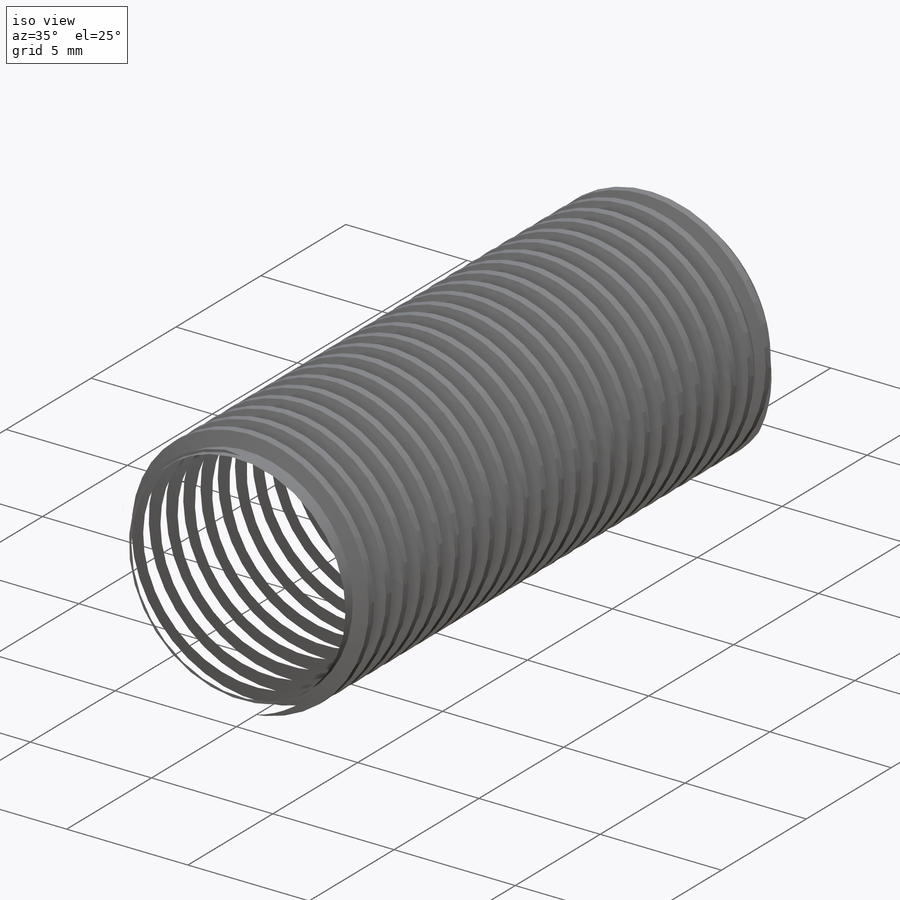
[diagram: iso view]
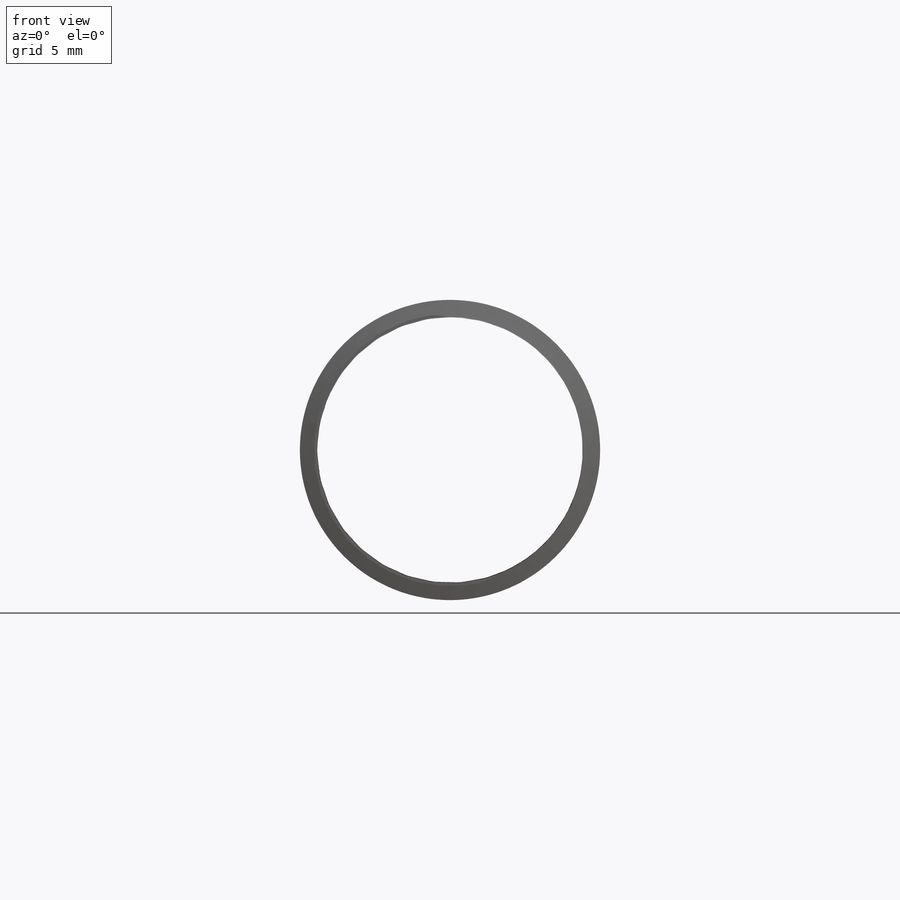
[diagram: front view]
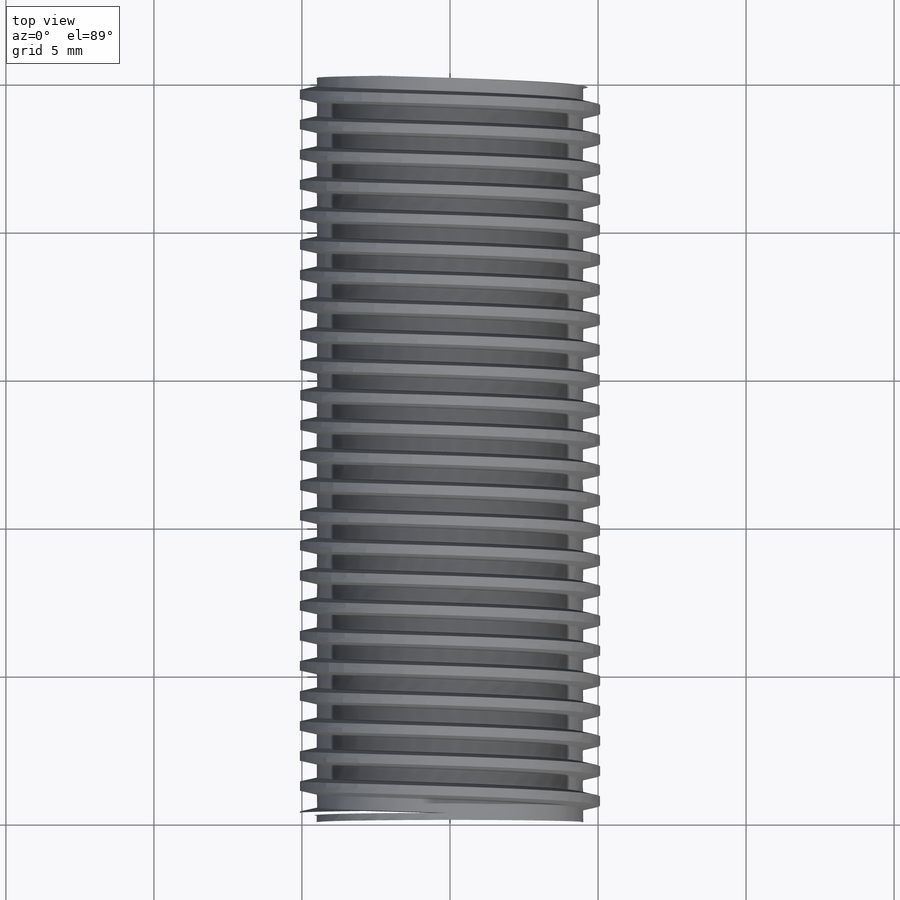
[diagram: top view]
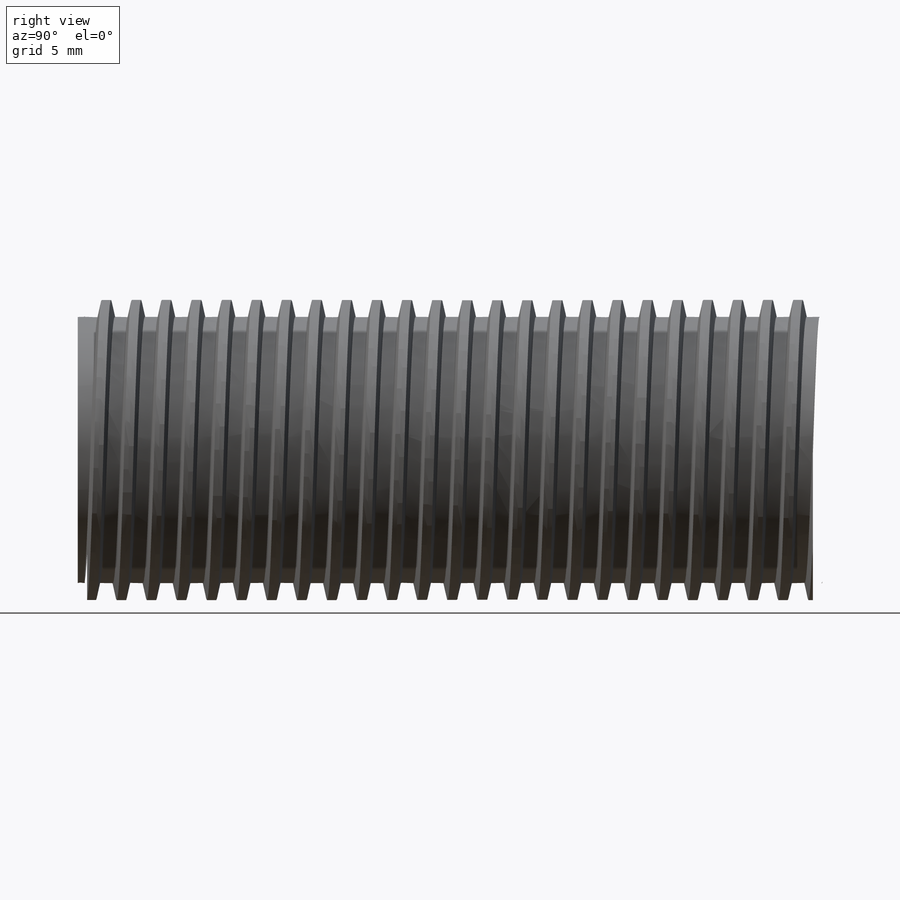
[diagram: right view]
SOLIDWORKS PART (.sldprt)
format: sldprt  version: not decoded by parser v0  size: 1,126,912 bytes
history: native  units: mm
features: sketch x11, cut_extrude x6, extrude x2, material x1, helix x1, sweep x1, plane x1 (+12 scaffold rows collapsed)
feature tree (35):
  scaffold x12  (default folders/planes/origin — collapsed)
  material  "Custom Plastic"
  sketch  "Sketch1"  dims[D1=9.0mm D2=9.525mm]
  extrude  "Boss-Extrude1"  Depth=34.841185mm
  sketch  "Sketch6"  dims[D1=5.08mm]
  helix  "Helix/Spiral1"  Pitch=31.7246mm
  sketch  "Sketch7"  dims[c1.D1=1.27mm c1.D2=1.27mm c2.D1=0.254mm c2.D2=~0.28121mm c3.D2=60.0deg c3.D3=0.254mm c4.D3=~63.805532deg c5.D3=~0.37642mm c5.D2=~0.293294mm c6.D2=120.0deg c7.D2=~0.283071mm c8.D2=~63.805532deg c9.D2=0.508mm c9.D3=0.635mm c10.D2=0.508mm c10.D1=0.5715mm c11.D2=0.5715mm c11.D3=0.127mm c11.D4=0.127mm c11.D5=~0.585441mm c12.D4=~0.585441mm c12.D3=0.127mm c13.D4=0.127mm c13.D1=0.3175mm c13.D2=0.5715mm c13.D3=~0.15875mm c14.D4=~0.15875mm c14.D5=~0.28575mm]
  sweep  "Sweep2"
  sketch  "Sketch9"  dims[D1=12.7mm D2=9.0mm]
  cut_extrude  "Cut-Extrude2"  Depth=10.16mm
  sketch  "Sketch22"  dims[D1=7.112mm]
  cut_extrude  "Cut-Extrude15"  Depth=2.54mm
  sketch  "Sketch19"  dims[D1=6.3754mm]
  cut_extrude  "Cut-Extrude11"  Depth=2.620013mm
  sketch  "Sketch23"  dims[D1=7.112mm]
  cut_extrude  "Cut-Extrude17"  Depth=2.54mm
  plane  "Plane1"
  sketch  "Sketch20"  dims[D1=6.3754mm]
  cut_extrude  "Cut-Extrude12"  Depth=2.620013mm
  sketch  "Sketch21"  dims[D1=7.112mm]
  sketch  "Sketch24"
  cut_extrude  "Cut-Extrude18"  Depth=2.54mm
  sketch  "Sketch26"  dims[D1=~2.813081mm]
  extrude  "Boss-Extrude3"  Depth=13mm
decode coverage: 19 of 21 modeling features carry decoded parameters
note: ~ marks probable driven/reference dimensions
note: suppression state not decoded; provenance and decode notes live in map.json
